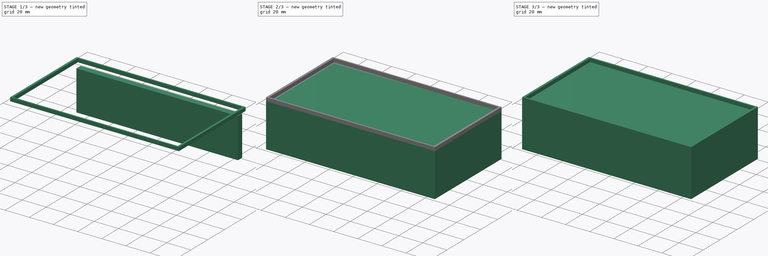
[diagram: build sequence overview — one tinted view per stage of 3, left to right]
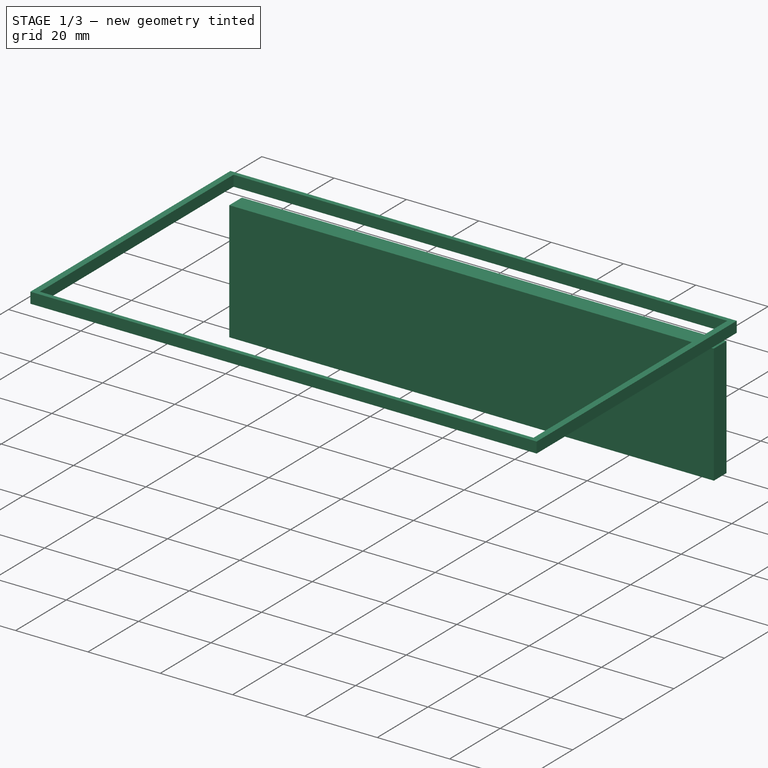
[diagram: stage 1 of 3 — iso view after this stage's code; geometry added in this stage tinted green]
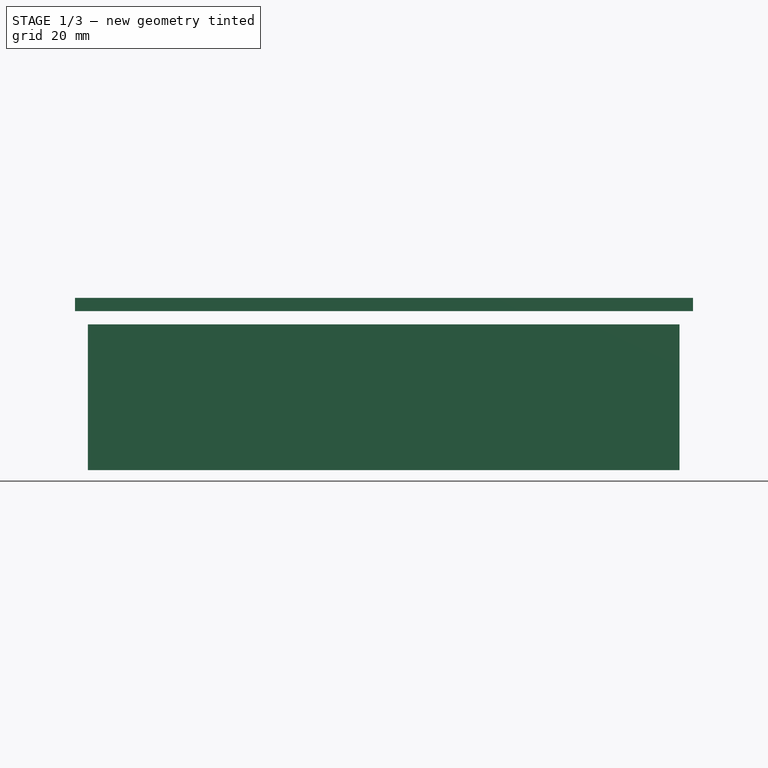
[diagram: stage 1 of 3 — front view after this stage's code; geometry added in this stage tinted green]
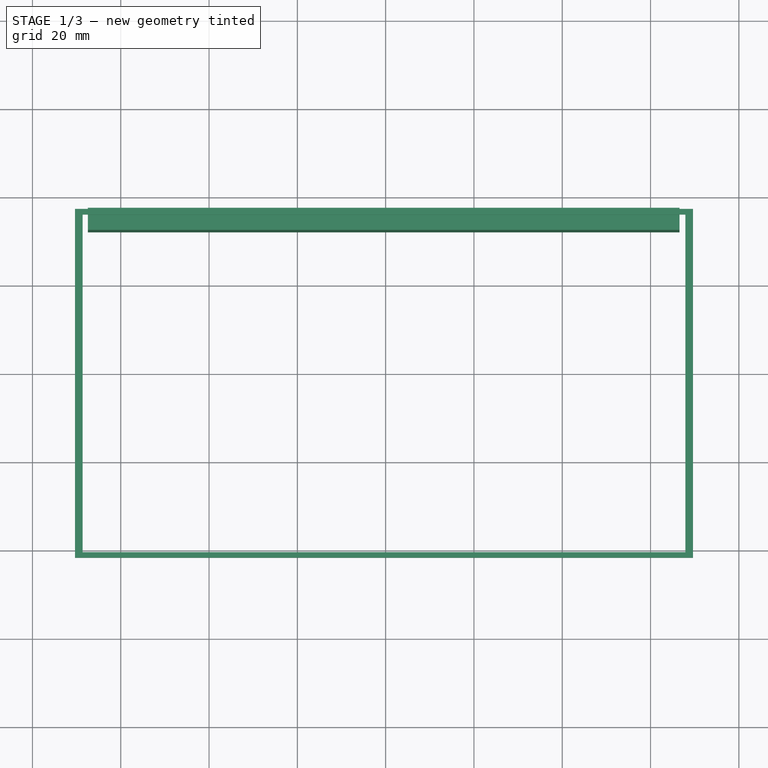
[diagram: stage 1 of 3 — top view after this stage's code; geometry added in this stage tinted green]
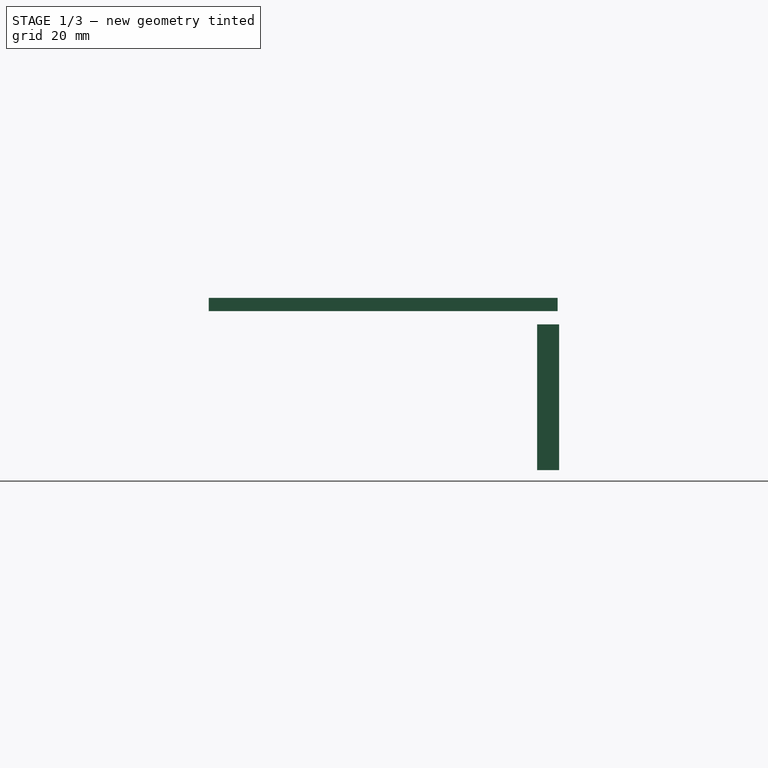
[diagram: stage 1 of 3 — right view after this stage's code; geometry added in this stage tinted green]
FCSTD DOCUMENT  (FreeCAD 0.18R4 (GitTag))
Label: Top (No Astro Ring)
License: All rights reserved
LicenseURL: http://en.wikipedia.org/wiki/All_rights_reserved
objects: Part::Extrusion×4, Sketcher::SketchObject×3, Part::Part2DObjectPython×1, Part::FeaturePython×1, Part::Cut×1
note: 10 computed .brp shape members not serialized (recipe doc carries the construction recipe); baked Part::Feature solids carry a one-line shape summary decoded from their .brp

FEATURE [Sketcher::SketchObject] Sketch001
  sketch-geometry (4):
    g0: LineSegment StartX=-67.4426 StartY=57.1313 StartZ=0 EndX=66.5574 EndY=57.1313 EndZ=0
    g1: LineSegment StartX=66.5574 StartY=57.1313 StartZ=0 EndX=66.5574 EndY=52.1313 EndZ=0
    g2: LineSegment StartX=66.5574 StartY=52.1313 StartZ=0 EndX=-67.4426 EndY=52.1313 EndZ=0
    g3: LineSegment StartX=-67.4426 StartY=52.1313 StartZ=0 EndX=-67.4426 EndY=57.1313 EndZ=0
  constraints (10):
    c: Coincident(g0,g1)
    c: Coincident(g1,g2)
    c: Coincident(g2,g3)
    c: Coincident(g3,g0)
    c: Horizontal(g0)
    c: Horizontal(g2)
    c: Vertical(g1)
    c: Vertical(g3)
    c: DistanceX(g0,g0) = 134
    c: DistanceY(g1,g1) = 5
FEATURE [Part::Extrusion] Extrude007
  Base = -> Sketch001
  Dir = (0,0,1)
  DirMode = 2
  FaceMakerClass = Part::FaceMakerBullseye
  LengthFwd = 15
  LengthRev = 18
  Solid = true
  Symmetric = false
FEATURE [Sketcher::SketchObject] Sketch002
  Placement = pos=(-0.276695,0.323605,18) rot=(0,0,1;0rad)
  sketch-geometry (8):
    g0: LineSegment StartX=-70.0984 StartY=56.4488 StartZ=0 EndX=69.9016 EndY=56.4488 EndZ=0
    g1: LineSegment StartX=69.9016 StartY=56.4488 StartZ=0 EndX=69.9016 EndY=-22.5512 EndZ=0
    g2: LineSegment StartX=69.9016 StartY=-22.5512 StartZ=0 EndX=-70.0984 EndY=-22.5512 EndZ=0
    g3: LineSegment StartX=-70.0984 StartY=-22.5512 StartZ=0 EndX=-70.0984 EndY=56.4488 EndZ=0
    g4: LineSegment StartX=-68.3484 StartY=55.1988 StartZ=0 EndX=68.1516 EndY=55.1988 EndZ=0
    g5: LineSegment StartX=68.1516 StartY=55.1988 StartZ=0 EndX=68.1516 EndY=-21.3012 EndZ=0
    g6: LineSegment StartX=68.1516 StartY=-21.3012 StartZ=0 EndX=-68.3484 EndY=-21.3012 EndZ=0
    g7: LineSegment StartX=-68.3484 StartY=-21.3012 StartZ=0 EndX=-68.3484 EndY=55.1988 EndZ=0
  constraints (22):
    c: Coincident(g0,g1)
    c: Coincident(g1,g2)
    c: Coincident(g2,g3)
    c: Coincident(g3,g0)
    c: Horizontal(g0)
    c: Horizontal(g2)
    c: Vertical(g1)
    c: Vertical(g3)
    c: DistanceX(g0,g0) = 140
    c: DistanceY(g1,g1) = 79
    c: Coincident(g4,g5)
    c: Coincident(g5,g6)
    c: Coincident(g6,g7)
    c: Coincident(g7,g4)
    c: Horizontal(g4)
    c: Horizontal(g6)
    c: Vertical(g5)
    c: Vertical(g7)
    c: DistanceY(g7,g7) = 76.5
    c: DistanceX(g6,g6) = 136.5
    c: DistanceY(g4,g0) = 1.25
    c: DistanceX(g4,g0) = 1.75
FEATURE [Part::Extrusion] Extrude008
  Base = -> Sketch002
  Dir = (0,0,1)
  DirMode = 2
  FaceMakerClass = Part::FaceMakerBullseye
  LengthFwd = 3
  LengthRev = 0
  Solid = true
  Symmetric = false
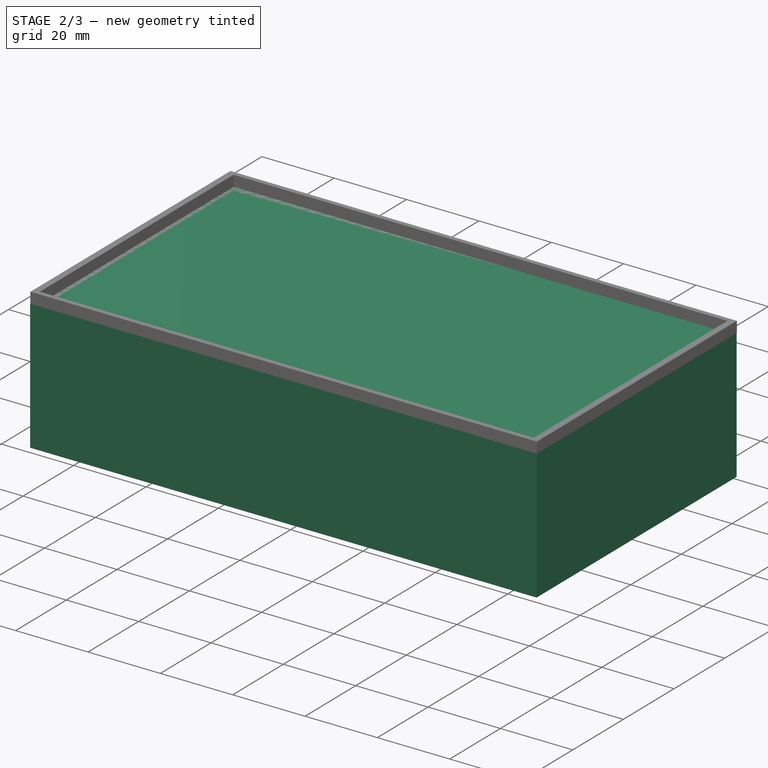
[diagram: stage 2 of 3 — iso view after this stage's code; geometry added in this stage tinted green]
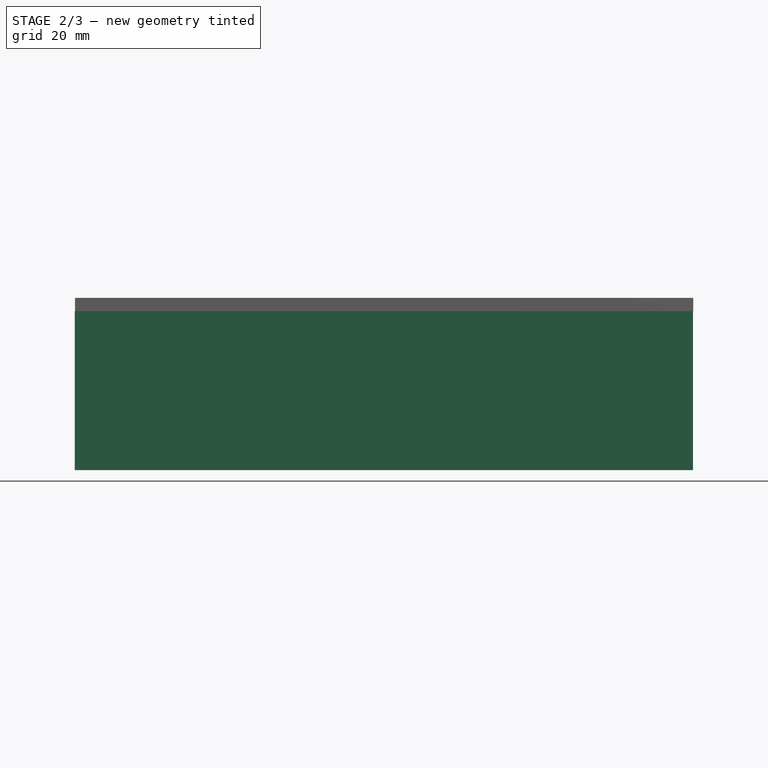
[diagram: stage 2 of 3 — front view after this stage's code; geometry added in this stage tinted green]
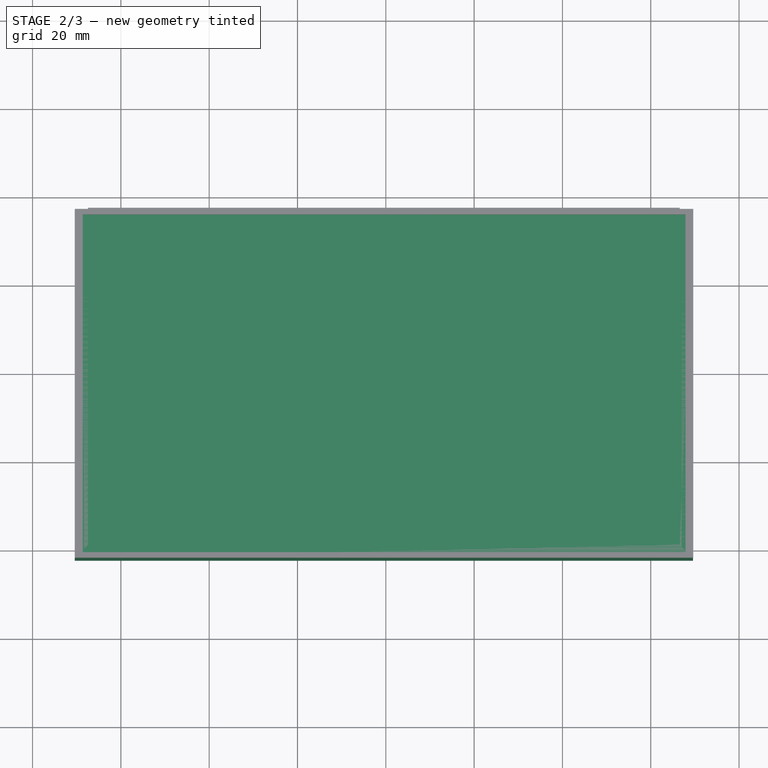
[diagram: stage 2 of 3 — top view after this stage's code; geometry added in this stage tinted green]
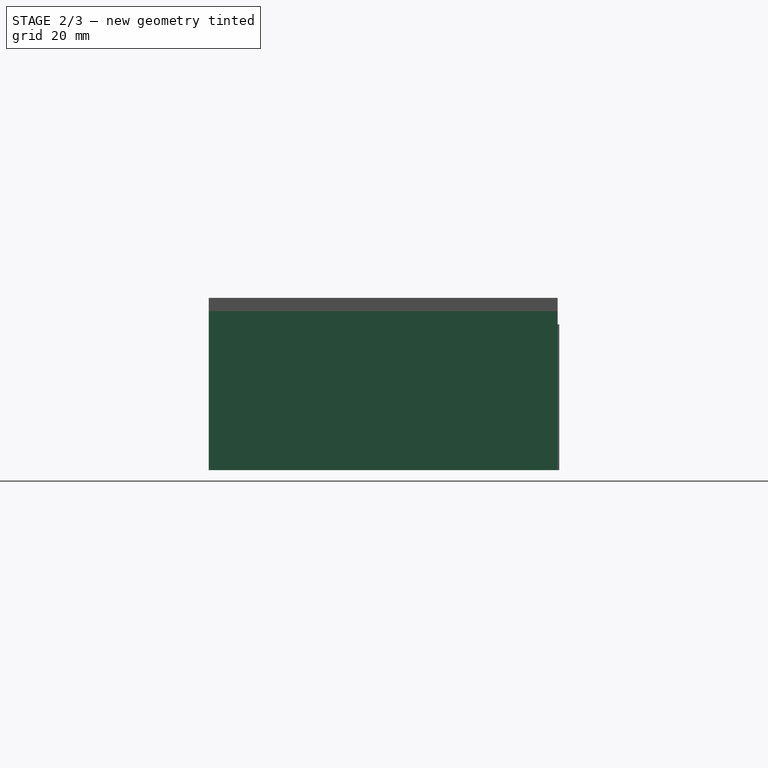
[diagram: stage 2 of 3 — right view after this stage's code; geometry added in this stage tinted green]
FEATURE [Sketcher::SketchObject] Sketch
  sketch-geometry (8):
    g0: LineSegment StartX=-70.4431 StartY=56.7724 StartZ=0 EndX=69.5569 EndY=56.7724 EndZ=0
    g1: LineSegment StartX=69.5569 StartY=56.7724 StartZ=0 EndX=69.5569 EndY=-22.2276 EndZ=0
    g2: LineSegment StartX=69.5569 StartY=-22.2276 StartZ=0 EndX=-70.4431 EndY=-22.2276 EndZ=0
    g3: LineSegment StartX=-70.4431 StartY=-22.2276 StartZ=0 EndX=-70.4431 EndY=56.7724 EndZ=0
    g4: LineSegment StartX=-67.4431 StartY=53.7724 StartZ=0 EndX=66.5569 EndY=53.7724 EndZ=0
    g5: LineSegment StartX=66.5569 StartY=53.7724 StartZ=0 EndX=66.5569 EndY=-19.2276 EndZ=0
    g6: LineSegment StartX=66.5569 StartY=-19.2276 StartZ=0 EndX=-67.4431 EndY=-19.2276 EndZ=0
    g7: LineSegment StartX=-67.4431 StartY=-19.2276 StartZ=0 EndX=-67.4431 EndY=53.7724 EndZ=0
  constraints (24):
    c: Coincident(g0,g1)
    c: Coincident(g1,g2)
    c: Coincident(g2,g3)
    c: Coincident(g3,g0)
    c: Horizontal(g0)
    c: Horizontal(g2)
    c: Vertical(g1)
    c: Vertical(g3)
    c: DistanceX(g0,g0) = 140
    c: DistanceY(g1,g1) = 79
    c: Coincident(g4,g5)
    c: Coincident(g5,g6)
    c: Coincident(g6,g7)
    c: Coincident(g7,g4)
    c: Horizontal(g4)
    c: Horizontal(g6)
    c: Vertical(g5)
    c: Vertical(g7)
    c: DistanceX(g4,g4) = 134
    c: DistanceX(g4,g0) = 3
    c: DistanceY(g2,g6) = 3
    c: DistanceY(g7,g7) = 73
    c: DistanceX(g4) = 66.5569
    c: DistanceY(g4) = 53.7724
FEATURE [Part::Part2DObjectPython] Rectangle  # Draft 2D object (typed FeaturePython)
  ChamferSize = 0
  Columns = 1
  FilletRadius = 0
  Height = 78.8195
  Length = 139.939
  MakeFace = false
  Placement = pos=(-70.3818,-22.0471,18) rot=(0,0,1;0rad)
  Rows = 1
FEATURE [Part::Extrusion] Extrude
  Base = -> Sketch
  Dir = (0,0,1)
  DirMode = 2
  FaceMakerClass = Part::FaceMakerBullseye
  LengthFwd = 36
  LengthRev = 0
  Solid = true
  Symmetric = true
FEATURE [Part::Extrusion] Extrude006
  Base = -> Rectangle
  Dir = (0,0,1)
  DirMode = 2
  FaceMakerClass = Part::FaceMakerBullseye
  LengthFwd = 0
  LengthRev = 3
  Solid = true
  Symmetric = false
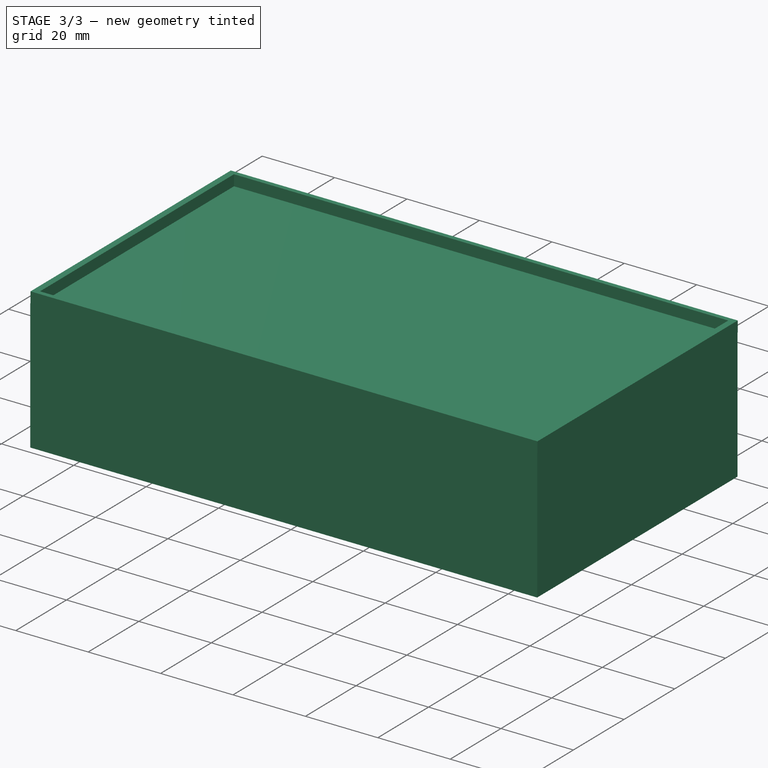
[diagram: stage 3 of 3 — iso view after this stage's code; geometry added in this stage tinted green]
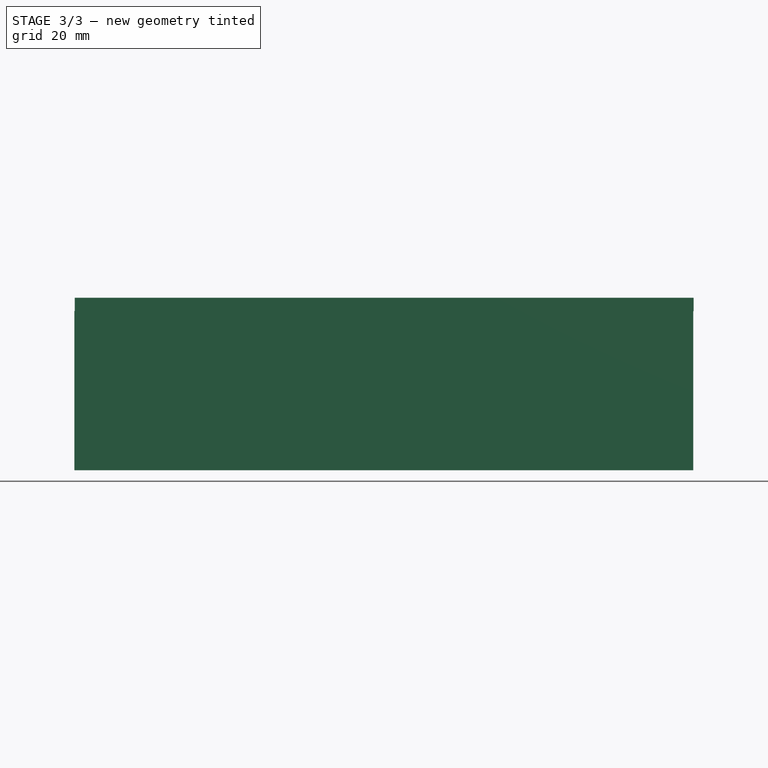
[diagram: stage 3 of 3 — front view after this stage's code; geometry added in this stage tinted green]
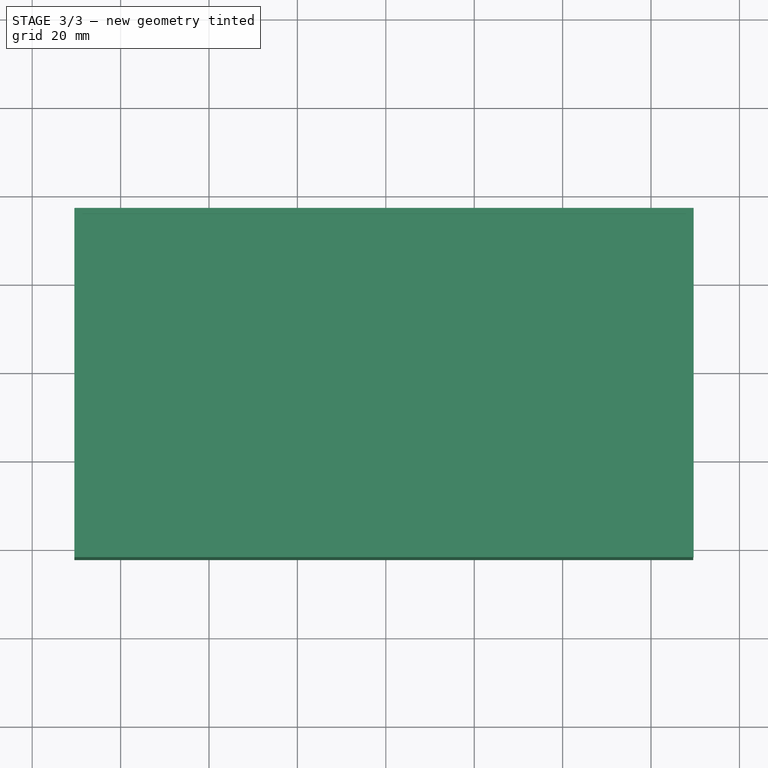
[diagram: stage 3 of 3 — top view after this stage's code; geometry added in this stage tinted green]
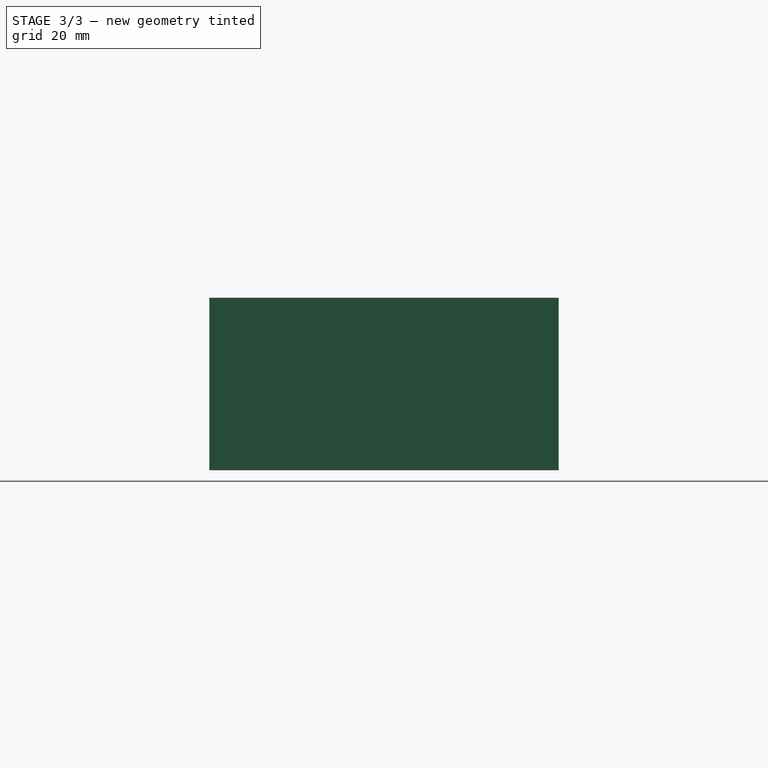
[diagram: stage 3 of 3 — right view after this stage's code; geometry added in this stage tinted green]
FEATURE [Part::FeaturePython] Connect  # WARN: FeaturePython — macro-defined, semantics opaque (R4)
  Objects = -> [Extrude006,Extrude]
  Tolerance = 0
FEATURE [Part::Cut] Cut
  Base = -> Connect
  Tool = -> Extrude007
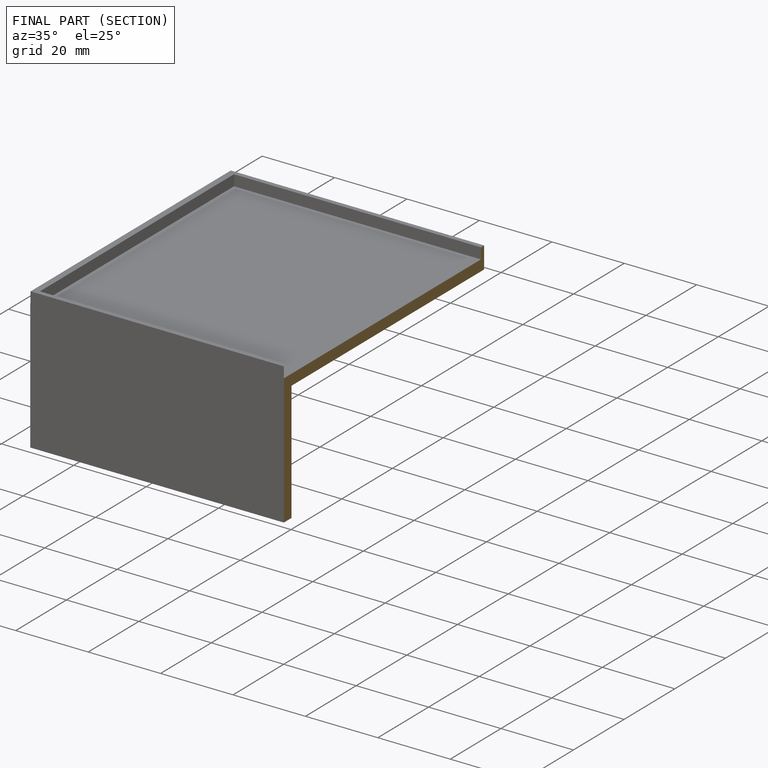
[diagram: finished part — half-section view (interior)]
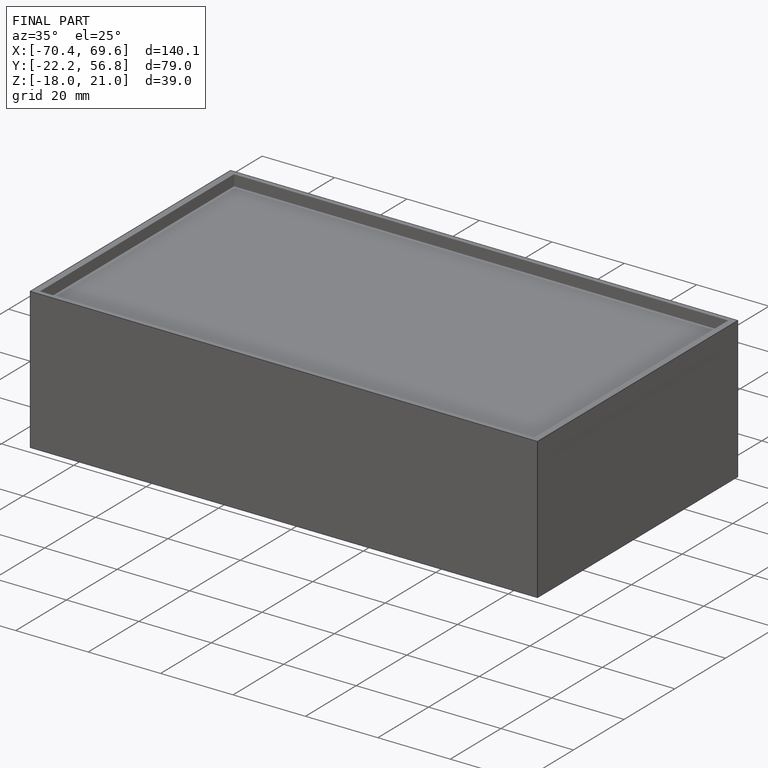
[diagram: finished part — iso view with bounding-box wireframe]
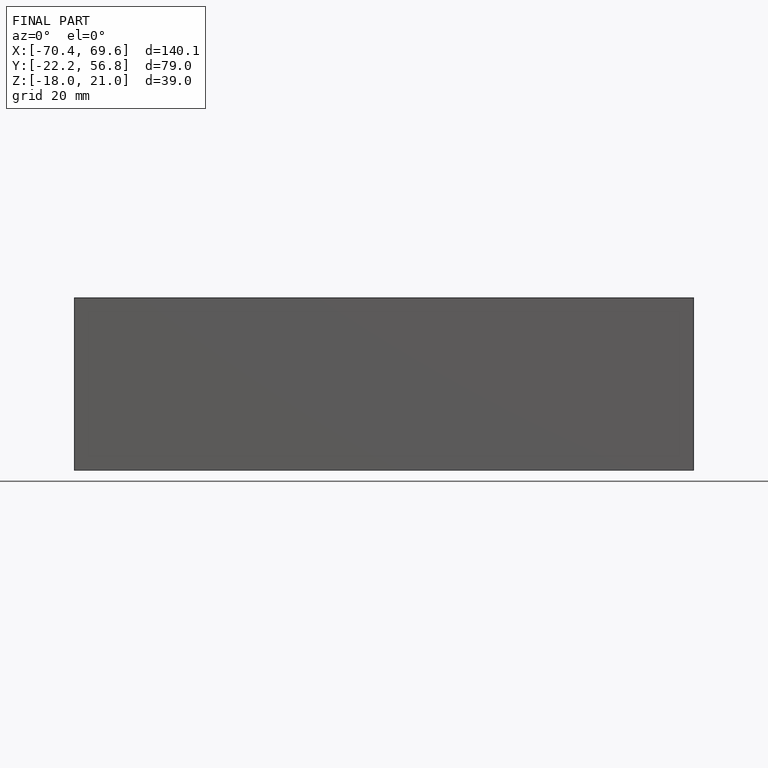
[diagram: finished part — front view with bounding-box wireframe]
